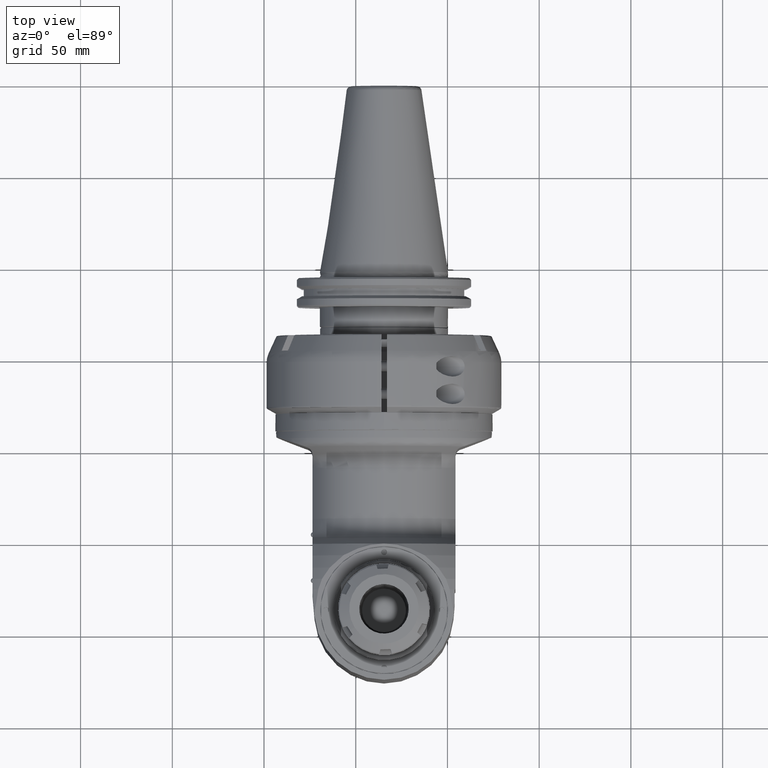
[diagram: clean part render]
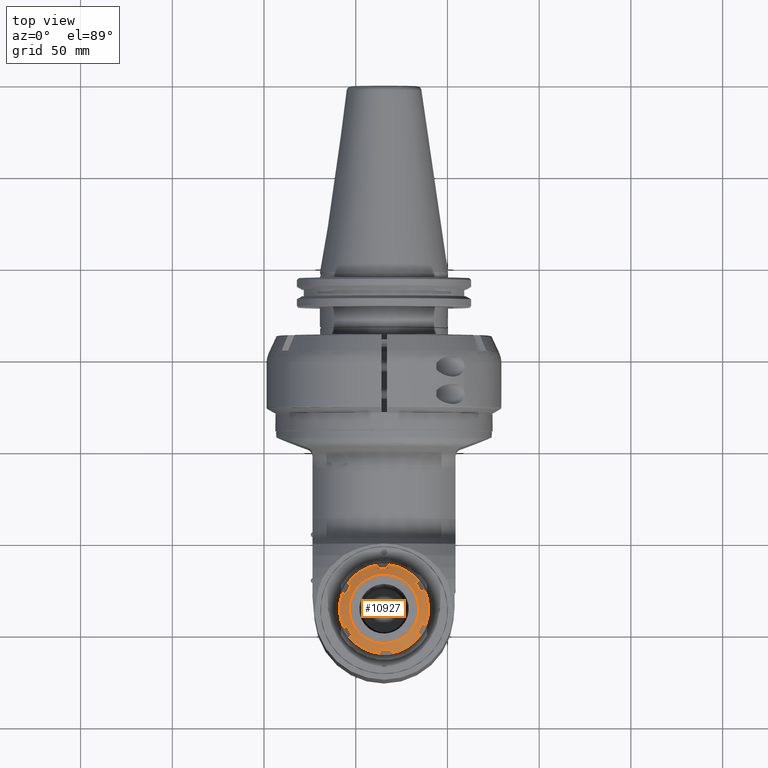
[diagram: same view with one face highlighted and labeled with its STEP entity id]
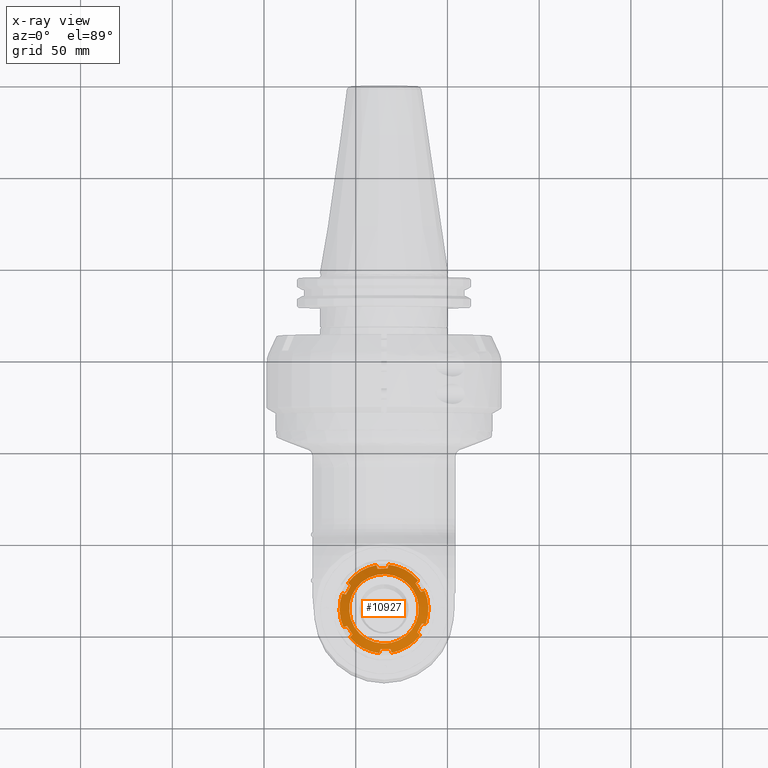
[diagram: x-ray of the same camera — body ghosted, the highlighted face saturated]
A machine part, top view. The second image highlights one B-rep face of the part: STEP entity #10927.
The next image is the same camera in x-ray: the body ghosted, the highlighted face saturated — about 0% of this face is hidden behind the body in this view.
In plain terms, the highlighted conical surface has half-angle 60 deg.
Its self-contained STEP definition (entity closure, byte-faithful):
#148=CONICAL_SURFACE('',#11829,21.59391108675,1.0471975511966);
#510=(
BOUNDED_CURVE()
B_SPLINE_CURVE(2,(#17844,#17845,#17846),.UNSPECIFIED.,.F.,.F.)
B_SPLINE_CURVE_WITH_KNOTS((3,3),(2.89469476621796,3.22887960846369),
 .UNSPECIFIED.)
CURVE()
GEOMETRIC_REPRESENTATION_ITEM()
RATIONAL_B_SPLINE_CURVE((1.06939507184438,1.06415443168869,1.05677885166795))
REPRESENTATION_ITEM('')
);
#511=(
BOUNDED_CURVE()
B_SPLINE_CURVE(2,(#17858,#17859,#17860),.UNSPECIFIED.,.F.,.F.)
B_SPLINE_CURVE_WITH_KNOTS((3,3),(-3.62159789194703,-2.84214657995405),
 .UNSPECIFIED.)
CURVE()
GEOMETRIC_REPRESENTATION_ITEM()
RATIONAL_B_SPLINE_CURVE((1.35813310696782,1.36870239561264,1.35813310696772))
REPRESENTATION_ITEM('')
);
#512=(
BOUNDED_CURVE()
B_SPLINE_CURVE(2,(#17864,#17865,#17866),.UNSPECIFIED.,.F.,.F.)
B_SPLINE_CURVE_WITH_KNOTS((3,3),(2.84214657995009,3.23187223595033),
 .UNSPECIFIED.)
CURVE()
GEOMETRIC_REPRESENTATION_ITEM()
RATIONAL_B_SPLINE_CURVE((1.35813310696664,1.36341775128917,1.36341775128917))
REPRESENTATION_ITEM('')
);
#513=(
BOUNDED_CURVE()
B_SPLINE_CURVE(2,(#17868,#17869,#17870),.UNSPECIFIED.,.F.,.F.)
B_SPLINE_CURVE_WITH_KNOTS((3,3),(-3.22887960846237,-2.8946947662275),
 .UNSPECIFIED.)
CURVE()
GEOMETRIC_REPRESENTATION_ITEM()
RATIONAL_B_SPLINE_CURVE((1.05677885166641,1.06415443168669,1.06939507184213))
REPRESENTATION_ITEM('')
);
#514=(
BOUNDED_CURVE()
B_SPLINE_CURVE(2,(#17874,#17875,#17876),.UNSPECIFIED.,.F.,.F.)
B_SPLINE_CURVE_WITH_KNOTS((3,3),(2.89469476622063,3.22887960850927),
 .UNSPECIFIED.)
CURVE()
GEOMETRIC_REPRESENTATION_ITEM()
RATIONAL_B_SPLINE_CURVE((1.06939507184102,1.0641544316849,1.05677885166329))
REPRESENTATION_ITEM('')
);
#515=(
BOUNDED_CURVE()
B_SPLINE_CURVE(2,(#17878,#17879,#17880),.UNSPECIFIED.,.F.,.F.)
B_SPLINE_CURVE_WITH_KNOTS((3,3),(2.84214657997757,3.62159789193347),
 .UNSPECIFIED.)
CURVE()
GEOMETRIC_REPRESENTATION_ITEM()
RATIONAL_B_SPLINE_CURVE((1.35813310697002,1.36870239561394,1.35813310697009))
REPRESENTATION_ITEM('')
);
#516=(
BOUNDED_CURVE()
B_SPLINE_CURVE(2,(#17882,#17883,#17884),.UNSPECIFIED.,.F.,.F.)
B_SPLINE_CURVE_WITH_KNOTS((3,3),(-3.22887960851118,-2.89469476622304),
 .UNSPECIFIED.)
CURVE()
GEOMETRIC_REPRESENTATION_ITEM()
RATIONAL_B_SPLINE_CURVE((1.05677885166312,1.06415443168473,1.06939507184086))
REPRESENTATION_ITEM('')
);
#517=(
BOUNDED_CURVE()
B_SPLINE_CURVE(2,(#17888,#17889,#17890),.UNSPECIFIED.,.F.,.F.)
B_SPLINE_CURVE_WITH_KNOTS((3,3),(-1.25404667830261,-0.919861836024418),
 .UNSPECIFIED.)
CURVE()
GEOMETRIC_REPRESENTATION_ITEM()
RATIONAL_B_SPLINE_CURVE((1.06939507184337,1.06415443168723,1.05677885166567))
REPRESENTATION_ITEM('')
);
#518=(
BOUNDED_CURVE()
B_SPLINE_CURVE(2,(#17892,#17893,#17894),.UNSPECIFIED.,.F.,.F.)
B_SPLINE_CURVE_WITH_KNOTS((3,3),(2.84214657997447,3.62159789193533),
 .UNSPECIFIED.)
CURVE()
GEOMETRIC_REPRESENTATION_ITEM()
RATIONAL_B_SPLINE_CURVE((1.35813310696796,1.36870239561187,1.3581331069678))
REPRESENTATION_ITEM('')
);
#519=(
BOUNDED_CURVE()
B_SPLINE_CURVE(2,(#17896,#17897,#17898),.UNSPECIFIED.,.F.,.F.)
B_SPLINE_CURVE_WITH_KNOTS((3,3),(-3.22887960849799,-2.8946947662218),
 .UNSPECIFIED.)
CURVE()
GEOMETRIC_REPRESENTATION_ITEM()
RATIONAL_B_SPLINE_CURVE((1.05677885166427,1.06415443168561,1.0693950718416))
REPRESENTATION_ITEM('')
);
#520=(
BOUNDED_CURVE()
B_SPLINE_CURVE(2,(#17901,#17902,#17903),.UNSPECIFIED.,.F.,.F.)
B_SPLINE_CURVE_WITH_KNOTS((3,3),(-3.22887960846426,-2.89469476621974),
 .UNSPECIFIED.)
CURVE()
GEOMETRIC_REPRESENTATION_ITEM()
RATIONAL_B_SPLINE_CURVE((1.05677885166822,1.06415443168896,1.06939507184467))
REPRESENTATION_ITEM('')
);
#521=(
BOUNDED_CURVE()
B_SPLINE_CURVE(2,(#17907,#17908,#17909),.UNSPECIFIED.,.F.,.F.)
B_SPLINE_CURVE_WITH_KNOTS((3,3),(2.89469476622928,3.22887960850579),
 .UNSPECIFIED.)
CURVE()
GEOMETRIC_REPRESENTATION_ITEM()
RATIONAL_B_SPLINE_CURVE((1.06939507183783,1.06415443168206,1.05677885166106))
REPRESENTATION_ITEM('')
);
#522=(
BOUNDED_CURVE()
B_SPLINE_CURVE(2,(#17911,#17912,#17913),.UNSPECIFIED.,.F.,.F.)
B_SPLINE_CURVE_WITH_KNOTS((3,3),(2.84214657997415,3.62159789193095),
 .UNSPECIFIED.)
CURVE()
GEOMETRIC_REPRESENTATION_ITEM()
RATIONAL_B_SPLINE_CURVE((1.35813310696838,1.36870239561227,1.35813310696839))
REPRESENTATION_ITEM('')
);
#523=(
BOUNDED_CURVE()
B_SPLINE_CURVE(2,(#17915,#17916,#17917),.UNSPECIFIED.,.F.,.F.)
B_SPLINE_CURVE_WITH_KNOTS((3,3),(-3.22887960849686,-2.89469476613355),
 .UNSPECIFIED.)
CURVE()
GEOMETRIC_REPRESENTATION_ITEM()
RATIONAL_B_SPLINE_CURVE((1.05677885166651,1.06415443169004,1.06939507184704))
REPRESENTATION_ITEM('')
);
#524=(
BOUNDED_CURVE()
B_SPLINE_CURVE(2,(#17921,#17922,#17923),.UNSPECIFIED.,.F.,.F.)
B_SPLINE_CURVE_WITH_KNOTS((3,3),(-1.25404667829714,-0.919861836019804),
 .UNSPECIFIED.)
CURVE()
GEOMETRIC_REPRESENTATION_ITEM()
RATIONAL_B_SPLINE_CURVE((1.06939507184002,1.0641544316841,1.05677885166287))
REPRESENTATION_ITEM('')
);
#525=(
BOUNDED_CURVE()
B_SPLINE_CURVE(2,(#17925,#17926,#17927),.UNSPECIFIED.,.F.,.F.)
B_SPLINE_CURVE_WITH_KNOTS((3,3),(-3.62159789193003,-2.84214657997417),
 .UNSPECIFIED.)
CURVE()
GEOMETRIC_REPRESENTATION_ITEM()
RATIONAL_B_SPLINE_CURVE((1.35813310696794,1.3687023956118,1.35813310696795))
REPRESENTATION_ITEM('')
);
#526=(
BOUNDED_CURVE()
B_SPLINE_CURVE(2,(#17929,#17930,#17931),.UNSPECIFIED.,.F.,.F.)
B_SPLINE_CURVE_WITH_KNOTS((3,3),(-3.22887960849361,-2.8946947662156),
 .UNSPECIFIED.)
CURVE()
GEOMETRIC_REPRESENTATION_ITEM()
RATIONAL_B_SPLINE_CURVE((1.05677885166831,1.06415443169016,1.0693950718465))
REPRESENTATION_ITEM('')
);
#527=(
BOUNDED_CURVE()
B_SPLINE_CURVE(2,(#17935,#17936,#17937),.UNSPECIFIED.,.F.,.F.)
B_SPLINE_CURVE_WITH_KNOTS((3,3),(-1.25404667830295,-0.919861836062634),
 .UNSPECIFIED.)
CURVE()
GEOMETRIC_REPRESENTATION_ITEM()
RATIONAL_B_SPLINE_CURVE((1.0693950718443,1.0641544316887,1.05677885166812))
REPRESENTATION_ITEM('')
);
#528=(
BOUNDED_CURVE()
B_SPLINE_CURVE(2,(#17938,#17939,#17940),.UNSPECIFIED.,.F.,.F.)
B_SPLINE_CURVE_WITH_KNOTS((3,3),(3.23187223595033,3.6215978919495),
 .UNSPECIFIED.)
CURVE()
GEOMETRIC_REPRESENTATION_ITEM()
RATIONAL_B_SPLINE_CURVE((1.36341775128917,1.36341775128917,1.35813310696667))
REPRESENTATION_ITEM('')
);
#1198=FACE_OUTER_BOUND('',#1894,.T.);
#1894=EDGE_LOOP('',(#8017,#8018,#8019,#8020,#8021,#8022,#8023,#8024,#8025,
#8026,#8027,#8028,#8029,#8030,#8031,#8032,#8033,#8034,#8035,#8036,#8037,
#8038,#8039,#8040,#8041,#8042,#8043,#8044));
#2636=LINE('',#17942,#3323);
#3323=VECTOR('',#13563,21.59391108675);
#4019=CIRCLE('',#11830,24.25);
#4020=CIRCLE('',#11831,24.25);
#4021=CIRCLE('',#11832,24.25);
#4022=CIRCLE('',#11833,24.25);
#4023=CIRCLE('',#11834,24.25);
#4024=CIRCLE('',#11835,24.25);
#4025=CIRCLE('',#11836,18.93782217351);
#4757=VERTEX_POINT('',#17841);
#4758=VERTEX_POINT('',#17843);
#4759=VERTEX_POINT('',#17856);
#4760=VERTEX_POINT('',#17862);
#4761=VERTEX_POINT('',#17863);
#4762=VERTEX_POINT('',#17867);
#4763=VERTEX_POINT('',#17871);
#4764=VERTEX_POINT('',#17873);
#4765=VERTEX_POINT('',#17877);
#4766=VERTEX_POINT('',#17881);
#4767=VERTEX_POINT('',#17885);
#4768=VERTEX_POINT('',#17887);
#4769=VERTEX_POINT('',#17891);
#4770=VERTEX_POINT('',#17895);
#4771=VERTEX_POINT('',#17900);
#4772=VERTEX_POINT('',#17904);
#4773=VERTEX_POINT('',#17906);
#4774=VERTEX_POINT('',#17910);
#4775=VERTEX_POINT('',#17914);
#4776=VERTEX_POINT('',#17918);
#4777=VERTEX_POINT('',#17920);
#4778=VERTEX_POINT('',#17924);
#4779=VERTEX_POINT('',#17928);
#4780=VERTEX_POINT('',#17932);
#4781=VERTEX_POINT('',#17934);
#4782=VERTEX_POINT('',#17941);
#5998=EDGE_CURVE('',#4758,#4757,#510,.T.);
#6001=EDGE_CURVE('',#4759,#4757,#511,.T.);
#6002=EDGE_CURVE('',#4760,#4761,#512,.T.);
#6003=EDGE_CURVE('',#4760,#4762,#513,.T.);
#6004=EDGE_CURVE('',#4763,#4762,#4019,.T.);
#6005=EDGE_CURVE('',#4763,#4764,#514,.T.);
#6006=EDGE_CURVE('',#4765,#4764,#515,.T.);
#6007=EDGE_CURVE('',#4765,#4766,#516,.T.);
#6008=EDGE_CURVE('',#4767,#4766,#4020,.T.);
#6009=EDGE_CURVE('',#4767,#4768,#517,.T.);
#6010=EDGE_CURVE('',#4769,#4768,#518,.T.);
#6011=EDGE_CURVE('',#4769,#4770,#519,.T.);
#6012=EDGE_CURVE('',#4758,#4770,#4021,.T.);
#6013=EDGE_CURVE('',#4759,#4771,#520,.T.);
#6014=EDGE_CURVE('',#4772,#4771,#4022,.T.);
#6015=EDGE_CURVE('',#4772,#4773,#521,.T.);
#6016=EDGE_CURVE('',#4774,#4773,#522,.T.);
#6017=EDGE_CURVE('',#4774,#4775,#523,.T.);
#6018=EDGE_CURVE('',#4776,#4775,#4023,.T.);
#6019=EDGE_CURVE('',#4776,#4777,#524,.T.);
#6020=EDGE_CURVE('',#4777,#4778,#525,.T.);
#6021=EDGE_CURVE('',#4778,#4779,#526,.T.);
#6022=EDGE_CURVE('',#4780,#4779,#4024,.T.);
#6023=EDGE_CURVE('',#4780,#4781,#527,.T.);
#6024=EDGE_CURVE('',#4761,#4781,#528,.T.);
#6025=EDGE_CURVE('',#4761,#4782,#2636,.T.);
#6026=EDGE_CURVE('',#4782,#4782,#4025,.T.);
#8017=ORIENTED_EDGE('',*,*,#6002,.F.);
#8018=ORIENTED_EDGE('',*,*,#6003,.T.);
#8019=ORIENTED_EDGE('',*,*,#6004,.F.);
#8020=ORIENTED_EDGE('',*,*,#6005,.T.);
#8021=ORIENTED_EDGE('',*,*,#6006,.F.);
#8022=ORIENTED_EDGE('',*,*,#6007,.T.);
#8023=ORIENTED_EDGE('',*,*,#6008,.F.);
#8024=ORIENTED_EDGE('',*,*,#6009,.T.);
#8025=ORIENTED_EDGE('',*,*,#6010,.F.);
#8026=ORIENTED_EDGE('',*,*,#6011,.T.);
#8027=ORIENTED_EDGE('',*,*,#6012,.F.);
#8028=ORIENTED_EDGE('',*,*,#5998,.T.);
#8029=ORIENTED_EDGE('',*,*,#6001,.F.);
#8030=ORIENTED_EDGE('',*,*,#6013,.T.);
#8031=ORIENTED_EDGE('',*,*,#6014,.F.);
#8032=ORIENTED_EDGE('',*,*,#6015,.T.);
#8033=ORIENTED_EDGE('',*,*,#6016,.F.);
#8034=ORIENTED_EDGE('',*,*,#6017,.T.);
#8035=ORIENTED_EDGE('',*,*,#6018,.F.);
#8036=ORIENTED_EDGE('',*,*,#6019,.T.);
#8037=ORIENTED_EDGE('',*,*,#6020,.T.);
#8038=ORIENTED_EDGE('',*,*,#6021,.T.);
#8039=ORIENTED_EDGE('',*,*,#6022,.F.);
#8040=ORIENTED_EDGE('',*,*,#6023,.T.);
#8041=ORIENTED_EDGE('',*,*,#6024,.F.);
#8042=ORIENTED_EDGE('',*,*,#6025,.T.);
#8043=ORIENTED_EDGE('',*,*,#6026,.F.);
#8044=ORIENTED_EDGE('',*,*,#6025,.F.);
#10927=ADVANCED_FACE('',(#1198),#148,.T.);
#11829=AXIS2_PLACEMENT_3D('',#17861,#13549,#13550);
#11830=AXIS2_PLACEMENT_3D('',#17872,#13551,#13552);
#11831=AXIS2_PLACEMENT_3D('',#17886,#13553,#13554);
#11832=AXIS2_PLACEMENT_3D('',#17899,#13555,#13556);
#11833=AXIS2_PLACEMENT_3D('',#17905,#13557,#13558);
#11834=AXIS2_PLACEMENT_3D('',#17919,#13559,#13560);
#11835=AXIS2_PLACEMENT_3D('',#17933,#13561,#13562);
#11836=AXIS2_PLACEMENT_3D('',#17943,#13564,#13565);
#13549=DIRECTION('center_axis',(0.,1.,0.));
#13550=DIRECTION('ref_axis',(-0.529933890699467,0.,0.848038956350547));
#13551=DIRECTION('center_axis',(0.,1.,0.));
#13552=DIRECTION('ref_axis',(0.994875696589154,0.,-0.101105629597195));
#13553=DIRECTION('center_axis',(0.,1.,0.));
#13554=DIRECTION('ref_axis',(0.584997891991412,0.,0.811034812055317));
#13555=DIRECTION('center_axis',(0.,1.,0.));
#13556=DIRECTION('ref_axis',(-0.409877804597777,0.,0.912140441652549));
#13557=DIRECTION('center_axis',(0.,1.,0.));
#13558=DIRECTION('ref_axis',(-0.994875696589041,0.,0.101105629598304));
#13559=DIRECTION('center_axis',(0.,1.,0.));
#13560=DIRECTION('ref_axis',(-0.584997891991412,0.,-0.811034812055317));
#13561=DIRECTION('center_axis',(0.,1.,0.));
#13562=DIRECTION('ref_axis',(0.409877804596795,0.,-0.91214044165299));
#13563=DIRECTION('',(-0.458936211672065,-0.499999999999998,0.734423279598418));
#13564=DIRECTION('center_axis',(0.,-1.,0.));
#13565=DIRECTION('ref_axis',(0.529933890699467,0.,-0.848038956350547));
#17841=CARTESIAN_POINT('',(100.673561534712,-94.6332033554891,20.1141752397671));
#17843=CARTESIAN_POINT('',(100.0604632385,-93.43301270189,22.11940571007));
#17844=CARTESIAN_POINT('Ctrl Pts',(100.060463238528,-93.4330127018953,22.1194057100816));
#17845=CARTESIAN_POINT('Ctrl Pts',(100.380739983918,-94.060450229843,21.0718922964835));
#17846=CARTESIAN_POINT('Ctrl Pts',(100.673561534374,-94.633203355849,20.1141752398786));
#17856=CARTESIAN_POINT('',(96.0093472740436,-94.6332033554906,17.1995388404576));
#17858=CARTESIAN_POINT('Ctrl Pts',(96.0093472742523,-94.6332033562537,17.1995388400415));
#17859=CARTESIAN_POINT('Ctrl Pts',(98.3414544046233,-94.8301349466818,18.6568570397193));
#17860=CARTESIAN_POINT('Ctrl Pts',(100.673561534995,-94.6332033562517,20.1141752393974));
#17861=CARTESIAN_POINT('Origin',(110.,-94.96650635095,6.582135799438E-14));
#17862=CARTESIAN_POINT('',(123.990652726007,-94.6332033554717,-17.1995388404577));
#17863=CARTESIAN_POINT('',(121.658545595402,-94.7320508075549,-18.6568570397345));
#17864=CARTESIAN_POINT('Ctrl Pts',(123.990652725798,-94.6332033562354,-17.1995388400412));
#17865=CARTESIAN_POINT('Ctrl Pts',(122.820079505236,-94.7320508075549,-17.9310222423964));
#17866=CARTESIAN_POINT('Ctrl Pts',(121.658545595402,-94.7320508075549,-18.6568570397345));
#17867=CARTESIAN_POINT('',(125.5242266602,-93.4330127019,-18.62957022051));
#17868=CARTESIAN_POINT('Ctrl Pts',(123.990652725959,-94.6332033558321,-17.199538840811));
#17869=CARTESIAN_POINT('Ctrl Pts',(124.723102155712,-94.0604502298418,-17.8825353662213));
#17870=CARTESIAN_POINT('Ctrl Pts',(125.524226660235,-93.4330127019138,-18.629570220484));
#17871=CARTESIAN_POINT('',(134.1257356423,-93.43301270189,-2.451811517733));
#17872=CARTESIAN_POINT('Origin',(110.,-93.43301270189,6.573623199651E-14));
#17873=CARTESIAN_POINT('',(132.082605966282,-94.6332033557295,-1.98015498196322));
#17874=CARTESIAN_POINT('Ctrl Pts',(134.125735642299,-93.4330127018869,-2.45181151773058));
#17875=CARTESIAN_POINT('Ctrl Pts',(133.058424042481,-94.0604502299178,-2.20542260864786));
#17876=CARTESIAN_POINT('Ctrl Pts',(132.082605966477,-94.6332033559932,-1.98015498178901));
#17877=CARTESIAN_POINT('',(131.890563932028,-94.6332033557283,3.51649125585968));
#17878=CARTESIAN_POINT('Ctrl Pts',(131.890563931688,-94.6332033562866,3.51649125588778));
#17879=CARTESIAN_POINT('Ctrl Pts',(131.986584948816,-94.8301349466973,0.768168136936243));
#17880=CARTESIAN_POINT('Ctrl Pts',(132.082605965944,-94.6332033562878,-1.98015498201503));
#17881=CARTESIAN_POINT('',(133.8957944027,-93.43301270189,4.129589551608));
#17882=CARTESIAN_POINT('Ctrl Pts',(131.890563932234,-94.6332033559922,3.51649125569938));
#17883=CARTESIAN_POINT('Ctrl Pts',(132.848280988956,-94.0604502299165,3.80931280619167));
#17884=CARTESIAN_POINT('Ctrl Pts',(133.895794402693,-93.4330127018859,4.1295895516241));
#17885=CARTESIAN_POINT('',(124.1861988808,-93.43301270189,19.66759419234));
#17886=CARTESIAN_POINT('Origin',(110.,-93.43301270189,6.573623199651E-14));
#17887=CARTESIAN_POINT('',(122.756167501023,-94.6332033556963,18.1340202576005));
#17888=CARTESIAN_POINT('Ctrl Pts',(124.18619888082,-93.4330127018926,19.6675941923232));
#17889=CARTESIAN_POINT('Ctrl Pts',(123.43916402646,-94.0604502299023,18.8664696876957));
#17890=CARTESIAN_POINT('Ctrl Pts',(122.756167500969,-94.63320335596,18.1340202578561));
#17891=CARTESIAN_POINT('',(117.899911206286,-94.6332033556995,20.7160300962751));
#17892=CARTESIAN_POINT('Ctrl Pts',(117.899911206091,-94.6332033562577,20.7160300959942));
#17893=CARTESIAN_POINT('Ctrl Pts',(120.328039353495,-94.8301349466689,19.4250251766383));
#17894=CARTESIAN_POINT('Ctrl Pts',(122.756167500899,-94.6332033562545,18.134020257282));
#17895=CARTESIAN_POINT('',(118.3715677424,-93.4330127019,22.75915977213));
#17896=CARTESIAN_POINT('Ctrl Pts',(117.899911206528,-94.6332033559632,20.7160300963736));
#17897=CARTESIAN_POINT('Ctrl Pts',(118.125178833379,-94.0604502299083,21.6918481723429));
#17898=CARTESIAN_POINT('Ctrl Pts',(118.371567742452,-93.4330127019019,22.7591597721191));
#17899=CARTESIAN_POINT('Origin',(110.,-93.43301270189,6.573623199651E-14));
#17900=CARTESIAN_POINT('',(94.47577333977,-93.4330127019,18.62957022051));
#17901=CARTESIAN_POINT('Ctrl Pts',(96.0093472740918,-94.6332033558508,17.1995388408106));
#17902=CARTESIAN_POINT('Ctrl Pts',(95.2768978443215,-94.0604502298473,17.8825353662368));
#17903=CARTESIAN_POINT('Ctrl Pts',(94.4757733397769,-93.4330127019026,18.6295702205195));
#17904=CARTESIAN_POINT('',(85.87426435773,-93.4330127019,2.451811517739));
#17905=CARTESIAN_POINT('Origin',(110.,-93.43301270189,6.573623199651E-14));
#17906=CARTESIAN_POINT('',(87.9173940336776,-94.6332033557056,1.98015498197618));
#17907=CARTESIAN_POINT('Ctrl Pts',(85.8742643577267,-93.4330127019015,2.45181151772835));
#17908=CARTESIAN_POINT('Ctrl Pts',(86.9415759575083,-94.0604502299112,2.20542260865398));
#17909=CARTESIAN_POINT('Ctrl Pts',(87.9173940334831,-94.6332033559693,1.98015498180193));
#17910=CARTESIAN_POINT('',(88.1094360679317,-94.6332033557054,-3.51649125586067));
#17911=CARTESIAN_POINT('Ctrl Pts',(88.1094360682723,-94.6332033562636,-3.51649125588877));
#17912=CARTESIAN_POINT('Ctrl Pts',(88.0134150511439,-94.8301349466745,-0.768168136930366));
#17913=CARTESIAN_POINT('Ctrl Pts',(87.9173940340155,-94.6332033562638,1.98015498202799));
#17914=CARTESIAN_POINT('',(86.10420559681,-93.43301270159,-4.129589551783));
#17915=CARTESIAN_POINT('Ctrl Pts',(88.1094360677254,-94.6332033559692,-3.51649125570045));
#17916=CARTESIAN_POINT('Ctrl Pts',(87.1517190107947,-94.0604502297685,-3.80931280625671));
#17917=CARTESIAN_POINT('Ctrl Pts',(86.1042055968066,-93.4330127015871,-4.12958955176598));
#17918=CARTESIAN_POINT('',(95.81380111921,-93.43301270189,-19.66759419234));
#17919=CARTESIAN_POINT('Origin',(110.,-93.43301270189,6.573623199651E-14));
#17920=CARTESIAN_POINT('',(97.2438324990104,-94.633203355699,-18.1340202576183));
#17921=CARTESIAN_POINT('Ctrl Pts',(95.8138011192109,-93.4330127018934,-19.6675941923435));
#17922=CARTESIAN_POINT('Ctrl Pts',(96.5608359735717,-94.0604502299038,-18.866469687715));
#17923=CARTESIAN_POINT('Ctrl Pts',(97.2438324990641,-94.6332033559626,-18.1340202578739));
#17924=CARTESIAN_POINT('',(102.100088793716,-94.6332033556993,-20.7160300962762));
#17925=CARTESIAN_POINT('Ctrl Pts',(97.2438324991345,-94.6332033562572,-18.1340202572998));
#17926=CARTESIAN_POINT('Ctrl Pts',(99.6719606465227,-94.8301349466677,-19.4250251766475));
#17927=CARTESIAN_POINT('Ctrl Pts',(102.100088793911,-94.6332033562575,-20.7160300959952));
#17928=CARTESIAN_POINT('',(101.6284322576,-93.4330127019,-22.75915977213));
#17929=CARTESIAN_POINT('Ctrl Pts',(102.100088793474,-94.633203355963,-20.7160300963747));
#17930=CARTESIAN_POINT('Ctrl Pts',(101.874821166624,-94.0604502299086,-21.6918481723432));
#17931=CARTESIAN_POINT('Ctrl Pts',(101.62843225755,-93.433012701902,-22.7591597721197));
#17932=CARTESIAN_POINT('',(119.9395367615,-93.4330127019,-22.11940571007));
#17933=CARTESIAN_POINT('Origin',(110.,-93.43301270189,6.573623199651E-14));
#17934=CARTESIAN_POINT('',(119.326438465296,-94.6332033554722,-20.1141752397942));
#17935=CARTESIAN_POINT('Ctrl Pts',(119.939536761471,-93.4330127018978,-22.1194057100774));
#17936=CARTESIAN_POINT('Ctrl Pts',(119.619260016086,-94.0604502298352,-21.0718922964964));
#17937=CARTESIAN_POINT('Ctrl Pts',(119.326438465634,-94.6332033558326,-20.1141752399059));
#17938=CARTESIAN_POINT('Ctrl Pts',(121.658545595402,-94.7320508075549,-18.6568570397345));
#17939=CARTESIAN_POINT('Ctrl Pts',(120.497011685572,-94.7320508075549,-19.3826918370707));
#17940=CARTESIAN_POINT('Ctrl Pts',(119.326438465013,-94.633203356236,-20.1141752394238));
#17941=CARTESIAN_POINT('',(120.0357937858,-96.5,-16.06001095157));
#17942=CARTESIAN_POINT('',(121.44334531762,-94.96650635095,-18.3124778215339));
#17943=CARTESIAN_POINT('Origin',(110.,-96.5,6.590648399224E-14));